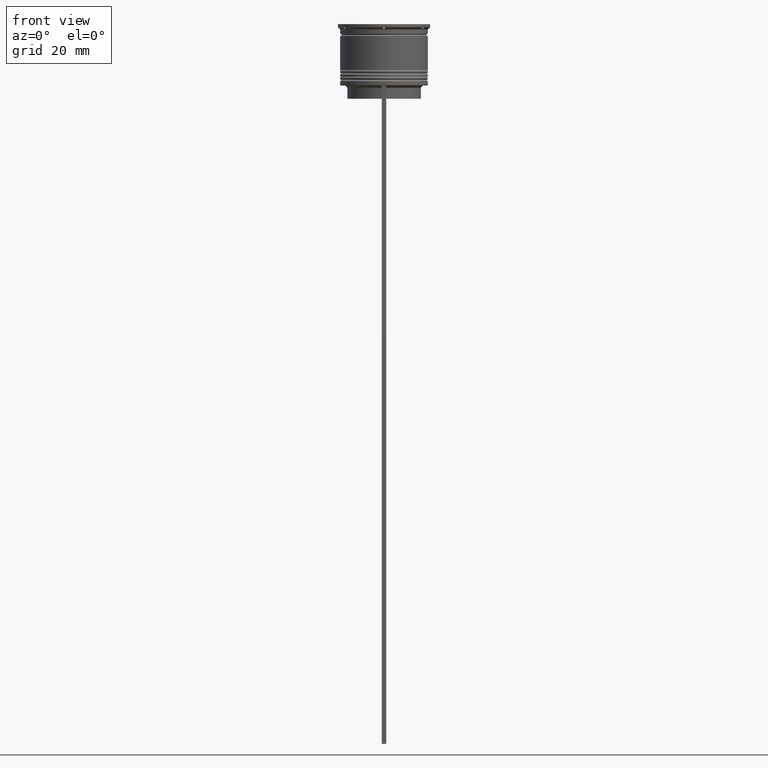
[diagram: clean part render]
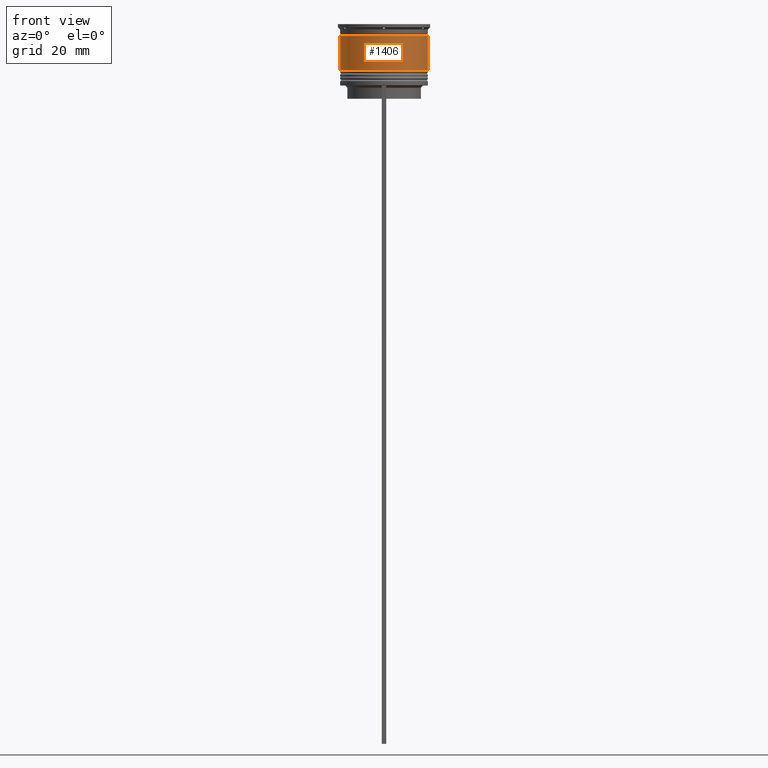
[diagram: same view with one face highlighted and labeled with its STEP entity id]
A machine part, front view. The second image highlights one B-rep face of the part: STEP entity #1406.
In plain terms, the highlighted cylindrical surface (partial cylindrical patch) has radius 10 mm, axis along (-0, -0, 1).
Its self-contained STEP definition (entity closure, byte-faithful):
#14 = FACE_OUTER_BOUND ( 'NONE', #1553, .T. ) ;
#144 = DIRECTION ( 'NONE',  ( 1.000000000000000000, 0.000000000000000000, 0.000000000000000000 ) ) ;
#366 = CARTESIAN_POINT ( 'NONE',  ( 0.000000000000000000, 0.000000000000000000, -10.50000000000000000 ) ) ;
#530 = AXIS2_PLACEMENT_3D ( 'NONE', #1780, #806, #1208 ) ;
#581 = DIRECTION ( 'NONE',  ( -0.000000000000000000, -0.000000000000000000, 1.000000000000000000 ) ) ;
#647 = CARTESIAN_POINT ( 'NONE',  ( 9.999999999999998224, 0.000000000000000000, -2.700000000000001954 ) ) ;
#749 = CARTESIAN_POINT ( 'NONE',  ( 0.000000000000000000, 0.000000000000000000, -2.700000000000001954 ) ) ;
#770 = CARTESIAN_POINT ( 'NONE',  ( -10.00000000000000178, 1.224646799147353454E-15, -10.50000000000000000 ) ) ;
#776 = CIRCLE ( 'NONE', #817, 10.00000000000000178 ) ;
#802 = EDGE_CURVE ( 'NONE', #2145, #2220, #2029, .T. ) ;
#806 = DIRECTION ( 'NONE',  ( -0.000000000000000000, -0.000000000000000000, 1.000000000000000000 ) ) ;
#817 = AXIS2_PLACEMENT_3D ( 'NONE', #366, #1935, #144 ) ;
#830 = VERTEX_POINT ( 'NONE', #770 ) ;
#1096 = CARTESIAN_POINT ( 'NONE',  ( 10.00000000000000178, 0.000000000000000000, -10.50000000000000000 ) ) ;
#1141 = DIRECTION ( 'NONE',  ( 1.000000000000000000, 0.000000000000000000, 0.000000000000000000 ) ) ;
#1176 = LINE ( 'NONE', #1641, #1951 ) ;
#1208 = DIRECTION ( 'NONE',  ( 1.000000000000000000, 0.000000000000000000, 0.000000000000000000 ) ) ;
#1314 = EDGE_CURVE ( 'NONE', #830, #2145, #1769, .T. ) ;
#1334 = VECTOR ( 'NONE', #1745, 1000.000000000000000 ) ;
#1394 = EDGE_CURVE ( 'NONE', #1563, #2220, #1176, .T. ) ;
#1406 = ADVANCED_FACE ( 'NONE', ( #14 ), #2415, .T. ) ;
#1486 = ORIENTED_EDGE ( 'NONE', *, *, #2144, .T. ) ;
#1553 = EDGE_LOOP ( 'NONE', ( #1771, #1486, #1937, #2087 ) ) ;
#1563 = VERTEX_POINT ( 'NONE', #1096 ) ;
#1615 = DIRECTION ( 'NONE',  ( -0.000000000000000000, -0.000000000000000000, 1.000000000000000000 ) ) ;
#1641 = CARTESIAN_POINT ( 'NONE',  ( 10.00000000000000000, 0.000000000000000000, 0.000000000000000000 ) ) ;
#1738 = CARTESIAN_POINT ( 'NONE',  ( -9.999999999999998224, 1.224646799147353256E-15, -2.700000000000001954 ) ) ;
#1745 = DIRECTION ( 'NONE',  ( -0.000000000000000000, -0.000000000000000000, 1.000000000000000000 ) ) ;
#1769 = LINE ( 'NONE', #2159, #1334 ) ;
#1771 = ORIENTED_EDGE ( 'NONE', *, *, #1314, .F. ) ;
#1780 = CARTESIAN_POINT ( 'NONE',  ( 0.000000000000000000, 0.000000000000000000, 0.000000000000000000 ) ) ;
#1935 = DIRECTION ( 'NONE',  ( -0.000000000000000000, -0.000000000000000000, 1.000000000000000000 ) ) ;
#1937 = ORIENTED_EDGE ( 'NONE', *, *, #1394, .T. ) ;
#1951 = VECTOR ( 'NONE', #1615, 1000.000000000000000 ) ;
#2029 = CIRCLE ( 'NONE', #2310, 9.999999999999998224 ) ;
#2087 = ORIENTED_EDGE ( 'NONE', *, *, #802, .F. ) ;
#2144 = EDGE_CURVE ( 'NONE', #830, #1563, #776, .T. ) ;
#2145 = VERTEX_POINT ( 'NONE', #1738 ) ;
#2159 = CARTESIAN_POINT ( 'NONE',  ( -10.00000000000000000, 1.224646799147353256E-15, 0.000000000000000000 ) ) ;
#2220 = VERTEX_POINT ( 'NONE', #647 ) ;
#2310 = AXIS2_PLACEMENT_3D ( 'NONE', #749, #581, #1141 ) ;
#2415 = CYLINDRICAL_SURFACE ( 'NONE', #530, 10.00000000000000000 ) ;